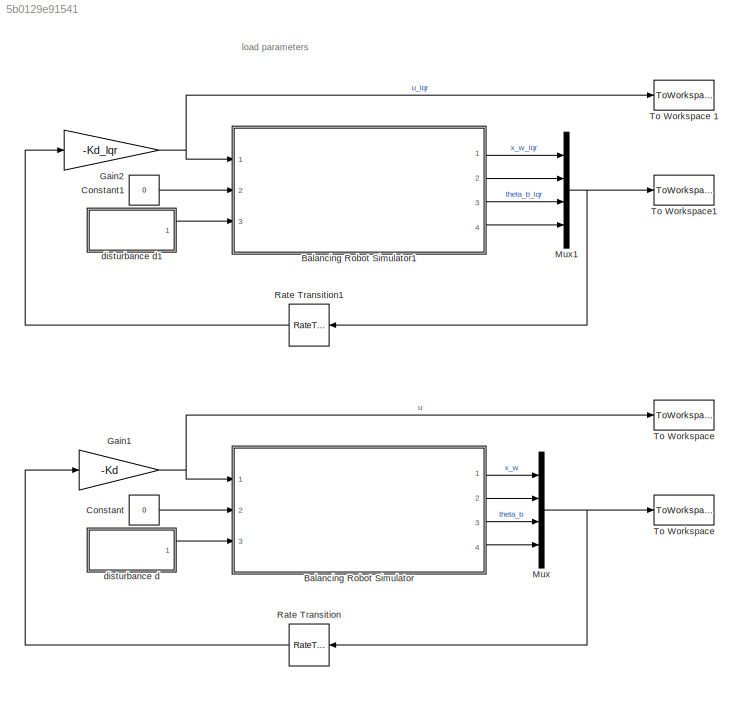
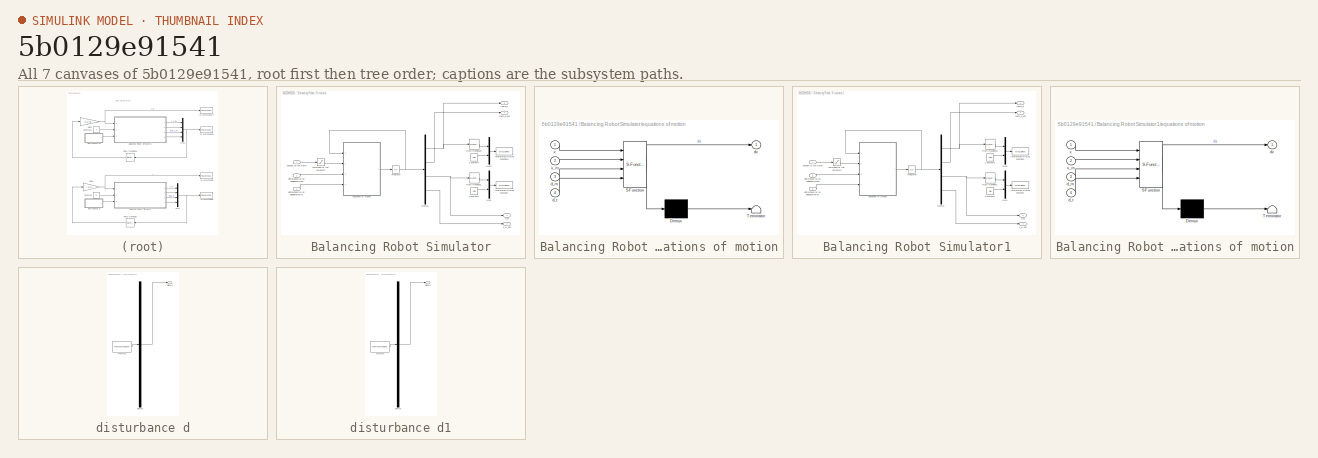
[diagram: thumbnail index - all 7 canvases of the model, root first then tree order]
MODEL slx_5b0129e91541
KIND model
CONFIG AbsTol = auto
CONFIG EnableMultiTasking = on
CONFIG FixedStep = auto
CONFIG MaxStep = auto
CONFIG MinStep = auto
CONFIG RelTol = 1e-3
CONFIG SampleTimeConstraint = Unconstrained
CONFIG Solver = ode45
CONFIG SolverName = ode45
CONFIG StartTime = 0.0
CONFIG StopTime = 10.0
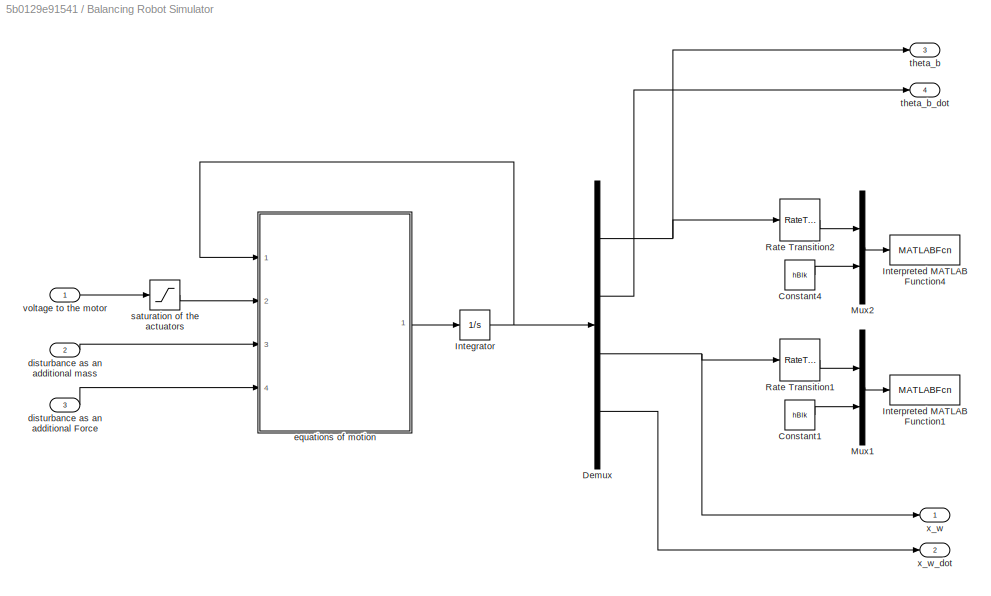
BLOCK [SubSystem] Balancing Robot Simulator
  Ports = [3, 4]
  RequestExecContextInheritance = off
  ShowPortLabels = SignalName
BLOCK [Constant] Balancing Robot Simulator/Constant1
  Value = hBlk
BLOCK [Constant] Balancing Robot Simulator/Constant4
  Value = hBlk
BLOCK [Demux] Balancing Robot Simulator/Demux
  DisplayOption = bar
  Ports = [1, 4]
BLOCK [Integrator] Balancing Robot Simulator/Integrator
  InitialCondition = X_0
  Ports = [1, 1]
BLOCK [MATLABFcn] Balancing Robot Simulator/Interpreted MATLAB Function1
  MATLABFcn = set_param(u(2),'x_w',num2str(u(1)))
  OutputDimensions = 0
  Ports = [1]
  SampleTime = 0.1
BLOCK [MATLABFcn] Balancing Robot Simulator/Interpreted MATLAB Function4
  MATLABFcn = set_param(u(2),'Theta',num2str(u(1)))
  OutputDimensions = 0
  Ports = [1]
BLOCK [Mux] Balancing Robot Simulator/Mux1
  DisplayOption = bar
  Inputs = 2
  Ports = [2, 1]
BLOCK [Mux] Balancing Robot Simulator/Mux2
  DisplayOption = bar
  Inputs = 2
  Ports = [2, 1]
BLOCK [RateTransition] Balancing Robot Simulator/Rate Transition1
  OutPortSampleTime = 0.1
BLOCK [RateTransition] Balancing Robot Simulator/Rate Transition2
  OutPortSampleTime = 0.1
BLOCK [Inport] Balancing Robot Simulator/disturbance as an additional Force
  IconDisplay = Port number
  Port = 3
BLOCK [Inport] Balancing Robot Simulator/disturbance as an additional mass 
  IconDisplay = Port number
  Port = 2
BLOCK [SubSystem] Balancing Robot Simulator/equations of motion
  ErrorFcn = Stateflow.Translate.translate
  PermitHierarchicalResolution = ExplicitOnly
  Ports = [4, 1]
  RequestExecContextInheritance = off
  SFBlockType = MATLAB Function
  TreatAsAtomicUnit = on
BLOCK [Demux] Balancing Robot Simulator/equations of motion/ Demux 
  Outputs = 1
  Ports = [1, 1]
BLOCK [S-Function] Balancing Robot Simulator/equations of motion/ SFunction 
  EnableBusSupport = on
  FunctionName = sf_sfun
  Parameters = I_b,I_w,K_e,K_t,L_m,R_m,b_f,b_m,g,l_b,l_w,m_b,m_w
  PortCounts = [4 2]
  Ports = [4, 2]
  SFcnIsStateOwnerBlock = off
  SFunctionDeploymentMode = off
  Tag = Stateflow S-Function LabB_ControllerOverSimulator_Discrete 2
BLOCK [Terminator] Balancing Robot Simulator/equations of motion/ Terminator 
BLOCK [Inport] Balancing Robot Simulator/equations of motion/d_m
  IconDisplay = Port number
  Port = 3
BLOCK [Inport] Balancing Robot Simulator/equations of motion/d_t
  IconDisplay = Port number
  Port = 4
BLOCK [Outport] Balancing Robot Simulator/equations of motion/dx
  IconDisplay = Port number
BLOCK [Inport] Balancing Robot Simulator/equations of motion/v_m
  IconDisplay = Port number
  Port = 2
BLOCK [Inport] Balancing Robot Simulator/equations of motion/x
  IconDisplay = Port number
BLOCK [Saturate] Balancing Robot Simulator/saturation of the actuators
  InputPortMap = u0
  LowerLimit = -v_m_limit
  Ports = [1, 1]
  UpperLimit = v_m_limit
BLOCK [Outport] Balancing Robot Simulator/theta_b
  IconDisplay = Port number
  Port = 3
BLOCK [Outport] Balancing Robot Simulator/theta_b_dot 
  IconDisplay = Port number
  Port = 4
BLOCK [Inport] Balancing Robot Simulator/voltage to the motor
  IconDisplay = Port number
BLOCK [Outport] Balancing Robot Simulator/x_w
  IconDisplay = Port number
BLOCK [Outport] Balancing Robot Simulator/x_w_dot
  IconDisplay = Port number
  Port = 2
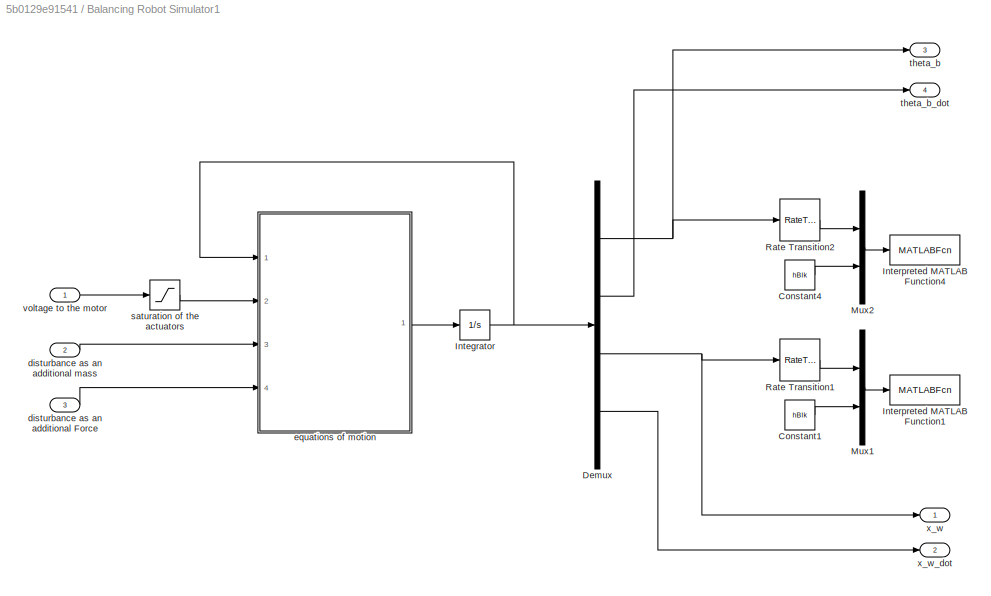
BLOCK [SubSystem] Balancing Robot Simulator1
  Ports = [3, 4]
  RequestExecContextInheritance = off
  ShowPortLabels = SignalName
BLOCK [Constant] Balancing Robot Simulator1/Constant1
  Value = hBlk
BLOCK [Constant] Balancing Robot Simulator1/Constant4
  Value = hBlk
BLOCK [Demux] Balancing Robot Simulator1/Demux
  DisplayOption = bar
  Ports = [1, 4]
BLOCK [Integrator] Balancing Robot Simulator1/Integrator
  InitialCondition = X_0
  Ports = [1, 1]
BLOCK [MATLABFcn] Balancing Robot Simulator1/Interpreted MATLAB Function1
  MATLABFcn = set_param(u(2),'x_w',num2str(u(1)))
  OutputDimensions = 0
  Ports = [1]
  SampleTime = 0.1
BLOCK [MATLABFcn] Balancing Robot Simulator1/Interpreted MATLAB Function4
  MATLABFcn = set_param(u(2),'Theta',num2str(u(1)))
  OutputDimensions = 0
  Ports = [1]
BLOCK [Mux] Balancing Robot Simulator1/Mux1
  DisplayOption = bar
  Inputs = 2
  Ports = [2, 1]
BLOCK [Mux] Balancing Robot Simulator1/Mux2
  DisplayOption = bar
  Inputs = 2
  Ports = [2, 1]
BLOCK [RateTransition] Balancing Robot Simulator1/Rate Transition1
  OutPortSampleTime = 0.1
BLOCK [RateTransition] Balancing Robot Simulator1/Rate Transition2
  OutPortSampleTime = 0.1
BLOCK [Inport] Balancing Robot Simulator1/disturbance as an additional Force
  IconDisplay = Port number
  Port = 3
BLOCK [Inport] Balancing Robot Simulator1/disturbance as an additional mass 
  IconDisplay = Port number
  Port = 2
BLOCK [SubSystem] Balancing Robot Simulator1/equations of motion
  ErrorFcn = Stateflow.Translate.translate
  PermitHierarchicalResolution = ExplicitOnly
  Ports = [4, 1]
  RequestExecContextInheritance = off
  SFBlockType = MATLAB Function
  TreatAsAtomicUnit = on
BLOCK [Demux] Balancing Robot Simulator1/equations of motion/ Demux 
  Outputs = 1
  Ports = [1, 1]
BLOCK [S-Function] Balancing Robot Simulator1/equations of motion/ SFunction 
  EnableBusSupport = on
  FunctionName = sf_sfun
  Parameters = I_b,I_w,K_e,K_t,L_m,R_m,b_f,b_m,g,l_b,l_w,m_b,m_w
  PortCounts = [4 2]
  Ports = [4, 2]
  SFcnIsStateOwnerBlock = off
  SFunctionDeploymentMode = off
  Tag = Stateflow S-Function LabB_ControllerOverSimulator_Discrete 1
BLOCK [Terminator] Balancing Robot Simulator1/equations of motion/ Terminator 
BLOCK [Inport] Balancing Robot Simulator1/equations of motion/d_m
  IconDisplay = Port number
  Port = 3
BLOCK [Inport] Balancing Robot Simulator1/equations of motion/d_t
  IconDisplay = Port number
  Port = 4
BLOCK [Outport] Balancing Robot Simulator1/equations of motion/dx
  IconDisplay = Port number
BLOCK [Inport] Balancing Robot Simulator1/equations of motion/v_m
  IconDisplay = Port number
  Port = 2
BLOCK [Inport] Balancing Robot Simulator1/equations of motion/x
  IconDisplay = Port number
BLOCK [Saturate] Balancing Robot Simulator1/saturation of the actuators
  InputPortMap = u0
  LowerLimit = -v_m_limit
  Ports = [1, 1]
  UpperLimit = v_m_limit
BLOCK [Outport] Balancing Robot Simulator1/theta_b
  IconDisplay = Port number
  Port = 3
BLOCK [Outport] Balancing Robot Simulator1/theta_b_dot 
  IconDisplay = Port number
  Port = 4
BLOCK [Inport] Balancing Robot Simulator1/voltage to the motor
  IconDisplay = Port number
BLOCK [Outport] Balancing Robot Simulator1/x_w
  IconDisplay = Port number
BLOCK [Outport] Balancing Robot Simulator1/x_w_dot
  IconDisplay = Port number
  Port = 2
BLOCK [Constant] Constant
  Value = 0
BLOCK [Constant] Constant1
  Value = 0
BLOCK [Gain] Gain1
  Gain = -Kd
  Multiplication = Matrix(K*u)
  OutDataTypeStr = Inherit: Inherit via internal rule
  ParamDataTypeStr = Inherit: Inherit via internal rule
  SaturateOnIntegerOverflow = off
BLOCK [Gain] Gain2
  Gain = -Kd_lqr
  Multiplication = Matrix(K*u)
  OutDataTypeStr = Inherit: Inherit via internal rule
  ParamDataTypeStr = Inherit: Inherit via internal rule
  SaturateOnIntegerOverflow = off
BLOCK [Mux] Mux
  DisplayOption = bar
  Ports = [4, 1]
BLOCK [Mux] Mux1
  DisplayOption = bar
  Ports = [4, 1]
BLOCK [RateTransition] Rate Transition
  OutPortSampleTime = fSamplingPeriod_old
BLOCK [RateTransition] Rate Transition1
  OutPortSampleTime = fSamplingPeriod
BLOCK [ToWorkspace] To Workspace
  FixptAsFi = on
  MaxDataPoints = inf
  Ports = [1]
  SampleTime = -1
  Save2DSignal = 3-D array (concatenate along third dimension)
  SaveFormat = Structure With Time
  VariableName = x
BLOCK [ToWorkspace] To Workspace 
  FixptAsFi = on
  MaxDataPoints = inf
  Ports = [1]
  SampleTime = -1
  Save2DSignal = 3-D array (concatenate along third dimension)
  SaveFormat = Structure With Time
  VariableName = u
BLOCK [ToWorkspace] To Workspace 1
  FixptAsFi = on
  MaxDataPoints = inf
  Ports = [1]
  SampleTime = -1
  Save2DSignal = 3-D array (concatenate along third dimension)
  SaveFormat = Structure With Time
  VariableName = u1
BLOCK [ToWorkspace] To Workspace1
  FixptAsFi = on
  MaxDataPoints = inf
  Ports = [1]
  SampleTime = -1
  Save2DSignal = 3-D array (concatenate along third dimension)
  SaveFormat = Structure With Time
  VariableName = x1
BLOCK [SubSystem] disturbance d
  ClipboardFcn = sigbuilder_block('clipboard');
  CloseFcn = sigbuilder_block('close');
  ContinueFcn = sigbuilder_block('continue');
  CopyFcn = sigbuilder_block('copy');
  DeleteFcn = sigbuilder_block('delete');
  LoadFcn = sigbuilder_block('load');
  MaskHideContents = on
  ModelCloseFcn = sigbuilder_block('modelClose');
  NameChangeFcn = sigbuilder_block('namechange');
  OpenFcn = sigbuilder_block('open',[437.6 199.2 550.4 400 ]);
  PauseFcn = sigbuilder_block('pause');
  Ports = [0, 1]
  PreSaveFcn = sigbuilder_block('preSave');
  RequestExecContextInheritance = off
  StartFcn = sigbuilder_block('start');
  StopFcn = sigbuilder_block('stop');
  Tag = STV Subsys
BLOCK [Demux] disturbance d/Demux
  Outputs = 1
  Ports = [1, 1]
  Tag = STV Demux
BLOCK [FromWorkspace] disturbance d/FromWs
  SampleTime = 0
  Tag = STV FromWs
  VariableName = tuvar
  ZeroCross = on
BLOCK [Outport] disturbance d/Signal 1
  IconDisplay = Port number
  Tag = STV Outport
BLOCK [SubSystem] disturbance d1
  ClipboardFcn = sigbuilder_block('clipboard');
  CloseFcn = sigbuilder_block('close');
  ContinueFcn = sigbuilder_block('continue');
  CopyFcn = sigbuilder_block('copy');
  DeleteFcn = sigbuilder_block('delete');
  LoadFcn = sigbuilder_block('load');
  MaskHideContents = on
  ModelCloseFcn = sigbuilder_block('modelClose');
  NameChangeFcn = sigbuilder_block('namechange');
  OpenFcn = sigbuilder_block('open',[437.6 199.2 550.4 400 ]);
  PauseFcn = sigbuilder_block('pause');
  Ports = [0, 1]
  PreSaveFcn = sigbuilder_block('preSave');
  RequestExecContextInheritance = off
  StartFcn = sigbuilder_block('start');
  StopFcn = sigbuilder_block('stop');
  Tag = STV Subsys
BLOCK [Demux] disturbance d1/Demux
  Outputs = 1
  Ports = [1, 1]
  Tag = STV Demux
BLOCK [FromWorkspace] disturbance d1/FromWs
  SampleTime = 0
  Tag = STV FromWs
  VariableName = tuvar
  ZeroCross = on
BLOCK [Outport] disturbance d1/Signal 1
  IconDisplay = Port number
  Tag = STV Outport
ANNOTATION (root): load parameters
LINE Balancing Robot Simulator/Constant1:1 -> Balancing Robot Simulator/Mux1:2
LINE Balancing Robot Simulator/Constant4:1 -> Balancing Robot Simulator/Mux2:2
NET Balancing Robot Simulator/Demux:1 -> Balancing Robot Simulator/Rate Transition2:1, Balancing Robot Simulator/theta_b:1
LINE Balancing Robot Simulator/Demux:2 -> Balancing Robot Simulator/theta_b_dot :1
NET Balancing Robot Simulator/Demux:3 -> Balancing Robot Simulator/Rate Transition1:1, Balancing Robot Simulator/x_w:1
LINE Balancing Robot Simulator/Demux:4 -> Balancing Robot Simulator/x_w_dot:1
NET Balancing Robot Simulator/Integrator:1 -> Balancing Robot Simulator/Demux:1, Balancing Robot Simulator/equations of motion:1
LINE Balancing Robot Simulator/Mux1:1 -> Balancing Robot Simulator/Interpreted MATLAB Function1:1
LINE Balancing Robot Simulator/Mux2:1 -> Balancing Robot Simulator/Interpreted MATLAB Function4:1
LINE Balancing Robot Simulator/Rate Transition1:1 -> Balancing Robot Simulator/Mux1:1
LINE Balancing Robot Simulator/Rate Transition2:1 -> Balancing Robot Simulator/Mux2:1
LINE Balancing Robot Simulator/disturbance as an additional Force:1 -> Balancing Robot Simulator/equations of motion:4
LINE Balancing Robot Simulator/disturbance as an additional mass :1 -> Balancing Robot Simulator/equations of motion:3
LINE Balancing Robot Simulator/equations of motion:1 -> Balancing Robot Simulator/Integrator:1
LINE Balancing Robot Simulator/saturation of the actuators:1 -> Balancing Robot Simulator/equations of motion:2
LINE Balancing Robot Simulator/voltage to the motor:1 -> Balancing Robot Simulator/saturation of the actuators:1
LINE Balancing Robot Simulator1/Constant1:1 -> Balancing Robot Simulator1/Mux1:2
LINE Balancing Robot Simulator1/Constant4:1 -> Balancing Robot Simulator1/Mux2:2
NET Balancing Robot Simulator1/Demux:1 -> Balancing Robot Simulator1/Rate Transition2:1, Balancing Robot Simulator1/theta_b:1
LINE Balancing Robot Simulator1/Demux:2 -> Balancing Robot Simulator1/theta_b_dot :1
NET Balancing Robot Simulator1/Demux:3 -> Balancing Robot Simulator1/Rate Transition1:1, Balancing Robot Simulator1/x_w:1
LINE Balancing Robot Simulator1/Demux:4 -> Balancing Robot Simulator1/x_w_dot:1
NET Balancing Robot Simulator1/Integrator:1 -> Balancing Robot Simulator1/Demux:1, Balancing Robot Simulator1/equations of motion:1
LINE Balancing Robot Simulator1/Mux1:1 -> Balancing Robot Simulator1/Interpreted MATLAB Function1:1
LINE Balancing Robot Simulator1/Mux2:1 -> Balancing Robot Simulator1/Interpreted MATLAB Function4:1
LINE Balancing Robot Simulator1/Rate Transition1:1 -> Balancing Robot Simulator1/Mux1:1
LINE Balancing Robot Simulator1/Rate Transition2:1 -> Balancing Robot Simulator1/Mux2:1
LINE Balancing Robot Simulator1/disturbance as an additional Force:1 -> Balancing Robot Simulator1/equations of motion:4
LINE Balancing Robot Simulator1/disturbance as an additional mass :1 -> Balancing Robot Simulator1/equations of motion:3
LINE Balancing Robot Simulator1/equations of motion:1 -> Balancing Robot Simulator1/Integrator:1
LINE Balancing Robot Simulator1/saturation of the actuators:1 -> Balancing Robot Simulator1/equations of motion:2
LINE Balancing Robot Simulator1/voltage to the motor:1 -> Balancing Robot Simulator1/saturation of the actuators:1
LINE Balancing Robot Simulator1:1 -> Mux1:1
LINE Balancing Robot Simulator1:2 -> Mux1:2
LINE Balancing Robot Simulator1:3 -> Mux1:3
LINE Balancing Robot Simulator1:4 -> Mux1:4
LINE Balancing Robot Simulator:1 -> Mux:1
LINE Balancing Robot Simulator:2 -> Mux:2
LINE Balancing Robot Simulator:3 -> Mux:3
LINE Balancing Robot Simulator:4 -> Mux:4
LINE Constant1:1 -> Balancing Robot Simulator1:2
LINE Constant:1 -> Balancing Robot Simulator:2
NET Gain1:1 -> Balancing Robot Simulator:1, To Workspace :1
NET Gain2:1 -> Balancing Robot Simulator1:1, To Workspace 1:1
NET Mux1:1 -> Rate Transition1:1, To Workspace1:1
NET Mux:1 -> Rate Transition:1, To Workspace:1
LINE Rate Transition1:1 -> Gain2:1
LINE Rate Transition:1 -> Gain1:1
LINE disturbance d1:1 -> Balancing Robot Simulator1:3
LINE disturbance d:1 -> Balancing Robot Simulator:3
note: NET lines group one-source signal fan-out (src -> all destinations, sorted); 1:1 wires keep LINE
CHART Balancing Robot Simulator1/equations of motion states=1 transitions=1
  STATE_LABEL 'eML_blk_kernel()'
  STATE_LABEL 'SCRIPT:\nfunction dx = EquationsOfMotion(x,\t\t...\n\t\t\t\t\t\t\t\tv_m,\t...\n\t\t\t\t\t\t\t\td_m,\t... % additional mass on the body\n\t\t\t\t\t\t\t\td_t,\t... % Fource that acted on the body\n\t\t\t\t\t\t\t\tg,\t\t...\n\t\t\t\t\t\t\t\tb_f,\t...\n\t\t\t\t\t\t\t\tm_b,\t...\n\t\t\t\t\t\t\t\tl_b,\t...\n\t\t\t\t\t\t\t\tI_b,\t...\n\t\t\t\t\t\t\t\tm_w,\t...\n\t\t\t\t\t\t\t\tl_w,\t...\n\t\t\t\t\t\t\t\tI_w,\t...\n\t\t\t\t\t\t\t\tR_m,\t...\n\t\t\t\t\t\t\t\tL_m,\t...\n\t\t\t\t\t\t\t\tb_m,\t...\n\t\t\t\t\t\t\t\tK_e,\t...\n\t\t\t\t\t\t\t\tK_t\t\t) %#ok<*INUSL>\n\n% initi...<+1583ch>'
CHART Balancing Robot Simulator/equations of motion states=1 transitions=1
  STATE_LABEL 'eML_blk_kernel()'
  STATE_LABEL 'SCRIPT:\nfunction dx = EquationsOfMotion(x,\t\t...\n\t\t\t\t\t\t\t\tv_m,\t...\n\t\t\t\t\t\t\t\td_m,\t... % additional mass on the body\n\t\t\t\t\t\t\t\td_t,\t... % Fource that acted on the body\n\t\t\t\t\t\t\t\tg,\t\t...\n\t\t\t\t\t\t\t\tb_f,\t...\n\t\t\t\t\t\t\t\tm_b,\t...\n\t\t\t\t\t\t\t\tl_b,\t...\n\t\t\t\t\t\t\t\tI_b,\t...\n\t\t\t\t\t\t\t\tm_w,\t...\n\t\t\t\t\t\t\t\tl_w,\t...\n\t\t\t\t\t\t\t\tI_w,\t...\n\t\t\t\t\t\t\t\tR_m,\t...\n\t\t\t\t\t\t\t\tL_m,\t...\n\t\t\t\t\t\t\t\tb_m,\t...\n\t\t\t\t\t\t\t\tK_e,\t...\n\t\t\t\t\t\t\t\tK_t\t\t) %#ok<*INUSL>\n\n% initi...<+1583ch>'
